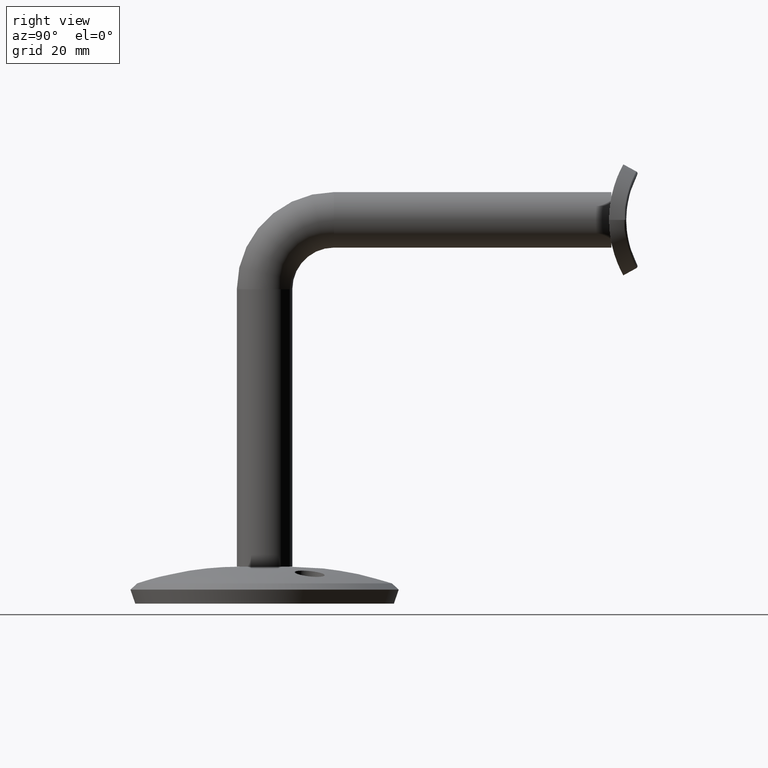
[diagram: clean part render]
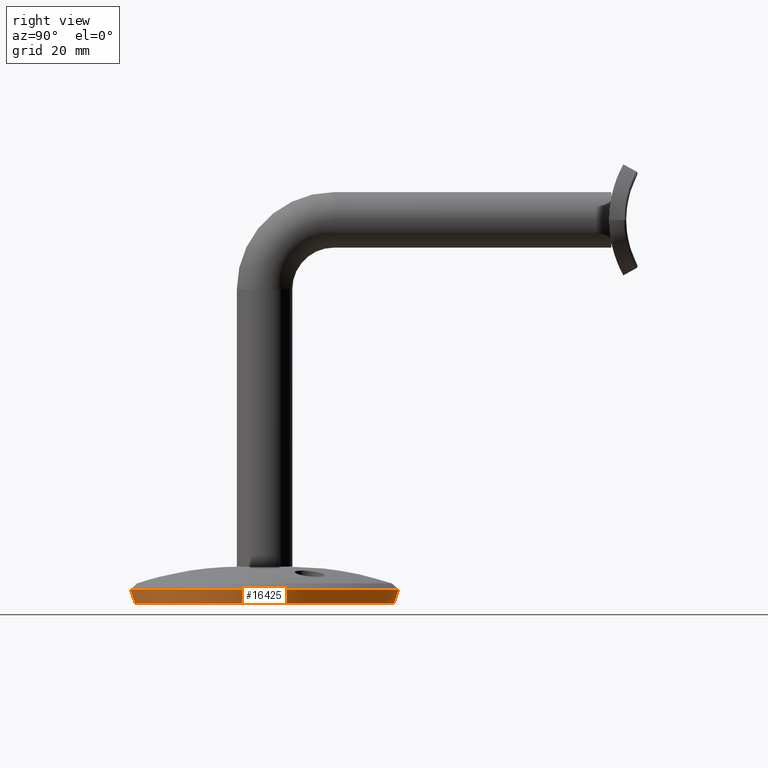
[diagram: same view with one face highlighted and labeled with its STEP entity id]
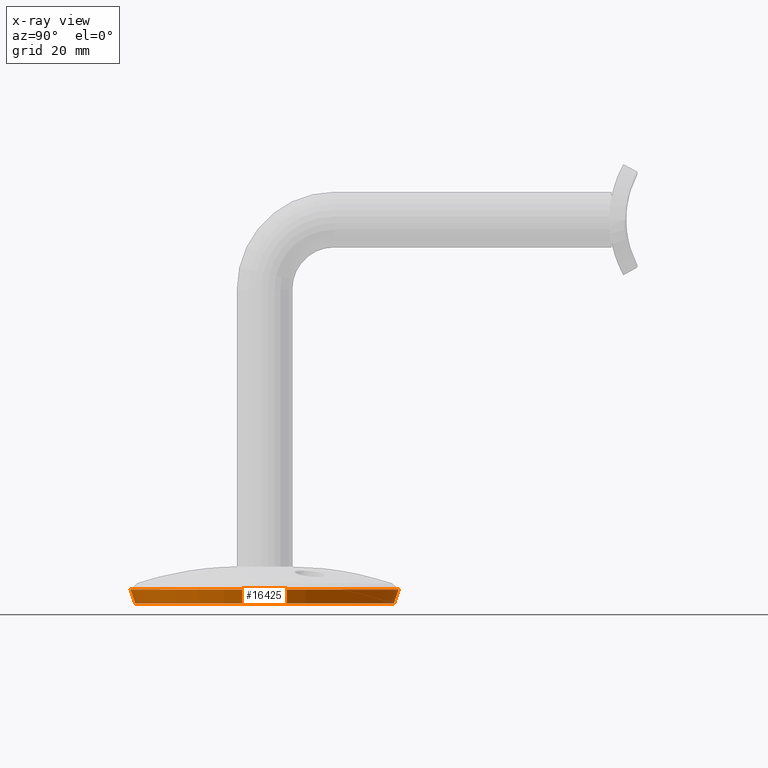
[diagram: x-ray of the same camera — body ghosted, the highlighted face saturated]
A machine part, right view. The second image highlights one B-rep face of the part: STEP entity #16425.
The next image is the same camera in x-ray: the body ghosted, the highlighted face saturated — about 0% of this face is hidden behind the body in this view.
In plain terms, the highlighted conical surface has half-angle 18.771 deg.
Its self-contained STEP definition (entity closure, byte-faithful):
#26 = VECTOR ( 'NONE', #2632, 1000.000000000000000 ) ;
#547 = LINE ( 'NONE', #10166, #5176 ) ;
#1206 = AXIS2_PLACEMENT_3D ( 'NONE', #16264, #4519, #14923 ) ;
#1230 = FACE_OUTER_BOUND ( 'NONE', #9489, .T. ) ;
#1955 = CARTESIAN_POINT ( 'NONE',  ( 0.000000000000000000, 0.000000000000000000, 0.000000000000000000 ) ) ;
#2096 = CARTESIAN_POINT ( 'NONE',  ( 3.424975975048986908E-15, 0.000000000000000000, 27.96705121373435077 ) ) ;
#2163 = CARTESIAN_POINT ( 'NONE',  ( 0.000000000000000000, 3.039262542945622592, -29.00000000000000000 ) ) ;
#2252 = DIRECTION ( 'NONE',  ( 0.000000000000000000, 0.9468107610422501486, 0.3217908991481814862 ) ) ;
#2315 = EDGE_CURVE ( 'NONE', #3511, #6224, #6069, .T. ) ;
#2408 = CIRCLE ( 'NONE', #1206, 29.00000000000000000 ) ;
#2409 = VERTEX_POINT ( 'NONE', #15663 ) ;
#2632 = DIRECTION ( 'NONE',  ( 3.940801946365692299E-17, 0.9468107610422501486, -0.3217908991481814862 ) ) ;
#3045 = DIRECTION ( 'NONE',  ( 0.000000000000000000, 1.000000000000000000, 0.000000000000000000 ) ) ;
#3511 = VERTEX_POINT ( 'NONE', #11204 ) ;
#4000 = AXIS2_PLACEMENT_3D ( 'NONE', #8045, #3045, #9441 ) ;
#4025 = CONICAL_SURFACE ( 'NONE', #4000, 27.96705121373434011, 0.3276203877854917401 ) ;
#4281 = VERTEX_POINT ( 'NONE', #2096 ) ;
#4519 = DIRECTION ( 'NONE',  ( 0.000000000000000000, -1.000000000000000000, 0.000000000000000000 ) ) ;
#5176 = VECTOR ( 'NONE', #2252, 1000.000000000000000 ) ;
#6069 = LINE ( 'NONE', #15360, #26 ) ;
#6224 = VERTEX_POINT ( 'NONE', #2163 ) ;
#7313 = ORIENTED_EDGE ( 'NONE', *, *, #14503, .F. ) ;
#8045 = CARTESIAN_POINT ( 'NONE',  ( 0.000000000000000000, 0.000000000000000000, 0.000000000000000000 ) ) ;
#9349 = AXIS2_PLACEMENT_3D ( 'NONE', #1955, #16020, #9728 ) ;
#9441 = DIRECTION ( 'NONE',  ( 0.000000000000000000, 0.000000000000000000, 1.000000000000000000 ) ) ;
#9489 = EDGE_LOOP ( 'NONE', ( #7313, #15567, #10362, #14279 ) ) ;
#9728 = DIRECTION ( 'NONE',  ( 0.000000000000000000, 0.000000000000000000, -1.000000000000000000 ) ) ;
#10166 = CARTESIAN_POINT ( 'NONE',  ( 0.000000000000000000, 0.000000000000000000, 27.96705121373434011 ) ) ;
#10362 = ORIENTED_EDGE ( 'NONE', *, *, #16564, .T. ) ;
#11204 = CARTESIAN_POINT ( 'NONE',  ( 0.000000000000000000, 0.000000000000000000, -27.96705121373435077 ) ) ;
#11990 = EDGE_CURVE ( 'NONE', #4281, #2409, #547, .T. ) ;
#13297 = CIRCLE ( 'NONE', #9349, 27.96705121373434011 ) ;
#14279 = ORIENTED_EDGE ( 'NONE', *, *, #11990, .F. ) ;
#14503 = EDGE_CURVE ( 'NONE', #3511, #4281, #13297, .T. ) ;
#14923 = DIRECTION ( 'NONE',  ( 0.000000000000000000, 0.000000000000000000, -1.000000000000000000 ) ) ;
#15360 = CARTESIAN_POINT ( 'NONE',  ( 3.424975975048986119E-15, 0.000000000000000000, -27.96705121373434011 ) ) ;
#15567 = ORIENTED_EDGE ( 'NONE', *, *, #2315, .T. ) ;
#15663 = CARTESIAN_POINT ( 'NONE',  ( 3.551475717527324030E-15, 3.039262542945622592, 29.00000000000000000 ) ) ;
#16020 = DIRECTION ( 'NONE',  ( 0.000000000000000000, -1.000000000000000000, 0.000000000000000000 ) ) ;
#16264 = CARTESIAN_POINT ( 'NONE',  ( 0.000000000000000000, 3.039262542945622592, 0.000000000000000000 ) ) ;
#16425 = ADVANCED_FACE ( 'NONE', ( #1230 ), #4025, .T. ) ;
#16564 = EDGE_CURVE ( 'NONE', #6224, #2409, #2408, .T. ) ;